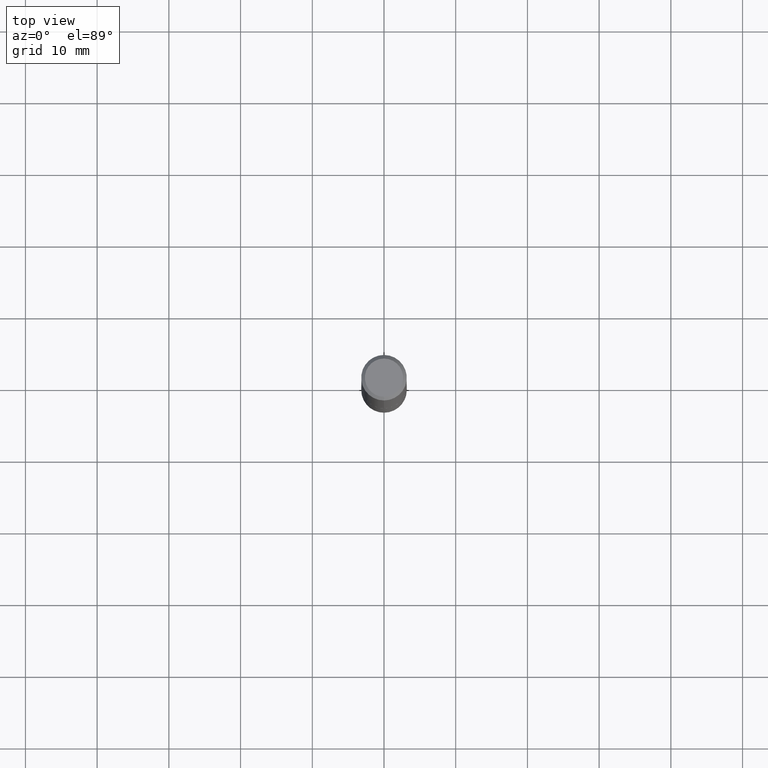
[diagram: clean part render]
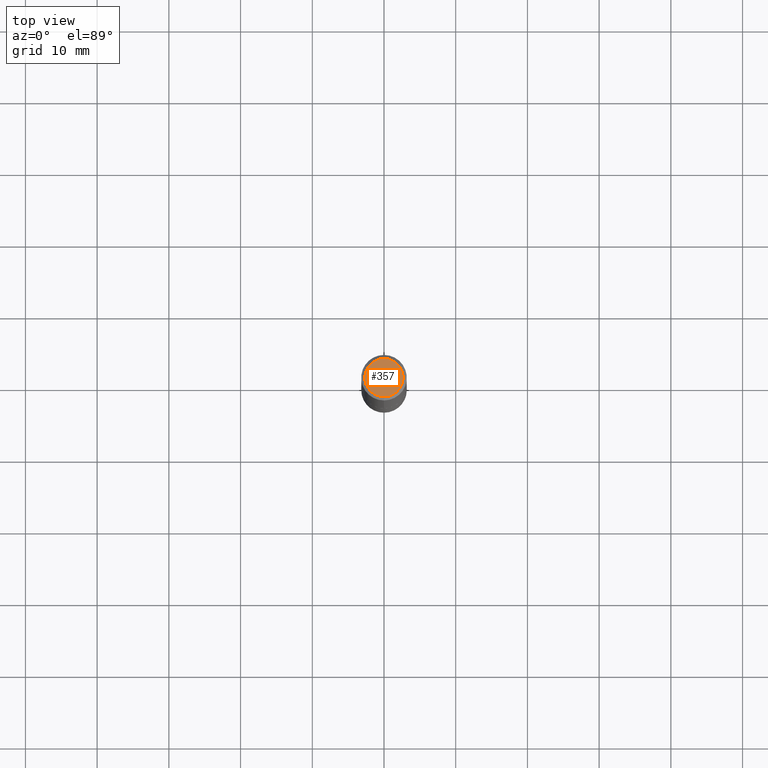
[diagram: same view with one face highlighted and labeled with its STEP entity id]
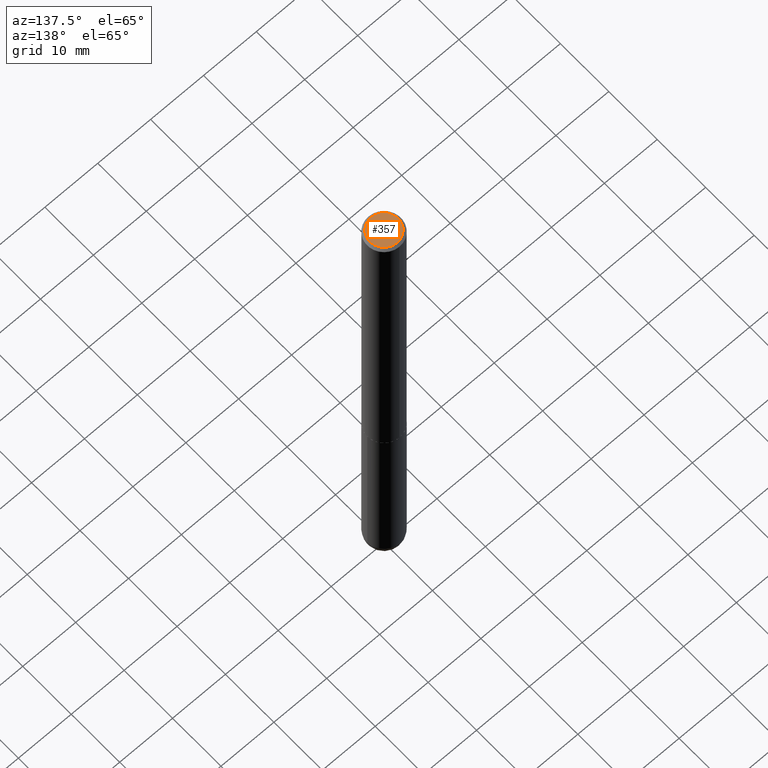
[diagram: same view with one face highlighted and labeled with its STEP entity id]
A machine part, top view. The second image highlights one B-rep face of the part: STEP entity #357.
A second angle (auxiliary view) of the same face is appended — the face is thin or edge-on in the first view.
In plain terms, the highlighted planar face has unit normal (0, -0, -1).
Its self-contained STEP definition (entity closure, byte-faithful):
#7 = DIRECTION ( 'NONE',  ( -6.982962677686265922E-15, -1.000000000000000000, 3.490679629361805041E-15 ) ) ;
#49 = DIRECTION ( 'NONE',  ( 6.982962677686265922E-15, 1.000000000000000000, -3.490679629361805041E-15 ) ) ;
#54 = VERTEX_POINT ( 'NONE', #104 ) ;
#72 = DIRECTION ( 'NONE',  ( -2.446028636923791301E-29, 3.490679629361805041E-15, 1.000000000000000000 ) ) ;
#86 = FACE_OUTER_BOUND ( 'NONE', #128, .T. ) ;
#96 = ORIENTED_EDGE ( 'NONE', *, *, #152, .T. ) ;
#104 = CARTESIAN_POINT ( 'NONE',  ( -7.889572697437270014E-16, -0.1050000000000003431, 4.203023233981880134E-17 ) ) ;
#108 = EDGE_CURVE ( 'NONE', #213, #54, #369, .T. ) ;
#128 = EDGE_LOOP ( 'NONE', ( #240, #96 ) ) ;
#139 = CARTESIAN_POINT ( 'NONE',  ( 8.030407079339220128E-16, 0.1050000000000003431, -6.910124898261626729E-16 ) ) ;
#152 = EDGE_CURVE ( 'NONE', #54, #213, #234, .T. ) ;
#179 = DIRECTION ( 'NONE',  ( 2.446028636923791021E-29, -3.490679629361805041E-15, -1.000000000000000000 ) ) ;
#213 = VERTEX_POINT ( 'NONE', #139 ) ;
#232 = DIRECTION ( 'NONE',  ( -2.446028636923791301E-29, 3.490679629361805041E-15, 1.000000000000000000 ) ) ;
#234 = CIRCLE ( 'NONE', #310, 0.1050000000000003431 ) ;
#240 = ORIENTED_EDGE ( 'NONE', *, *, #108, .T. ) ;
#258 = DIRECTION ( 'NONE',  ( -6.982962677686265922E-15, -1.000000000000000000, 3.490679629361805041E-15 ) ) ;
#263 = AXIS2_PLACEMENT_3D ( 'NONE', #329, #179, #49 ) ;
#294 = AXIS2_PLACEMENT_3D ( 'NONE', #349, #72, #258 ) ;
#310 = AXIS2_PLACEMENT_3D ( 'NONE', #374, #232, #7 ) ;
#329 = CARTESIAN_POINT ( 'NONE',  ( 7.332110811570602923E-16, 0.1050000000000003431, -5.287669254545767312E-16 ) ) ;
#349 = CARTESIAN_POINT ( 'NONE',  ( 7.937145933335233420E-45, -1.132694573012409239E-30, -3.244911287431719327E-16 ) ) ;
#357 = ADVANCED_FACE ( 'NONE', ( #86 ), #365, .F. ) ;
#365 = PLANE ( 'NONE',  #263 ) ;
#369 = CIRCLE ( 'NONE', #294, 0.1050000000000003431 ) ;
#374 = CARTESIAN_POINT ( 'NONE',  ( 7.937145933335233420E-45, -1.132694573012409239E-30, -3.244911287431719327E-16 ) ) ;